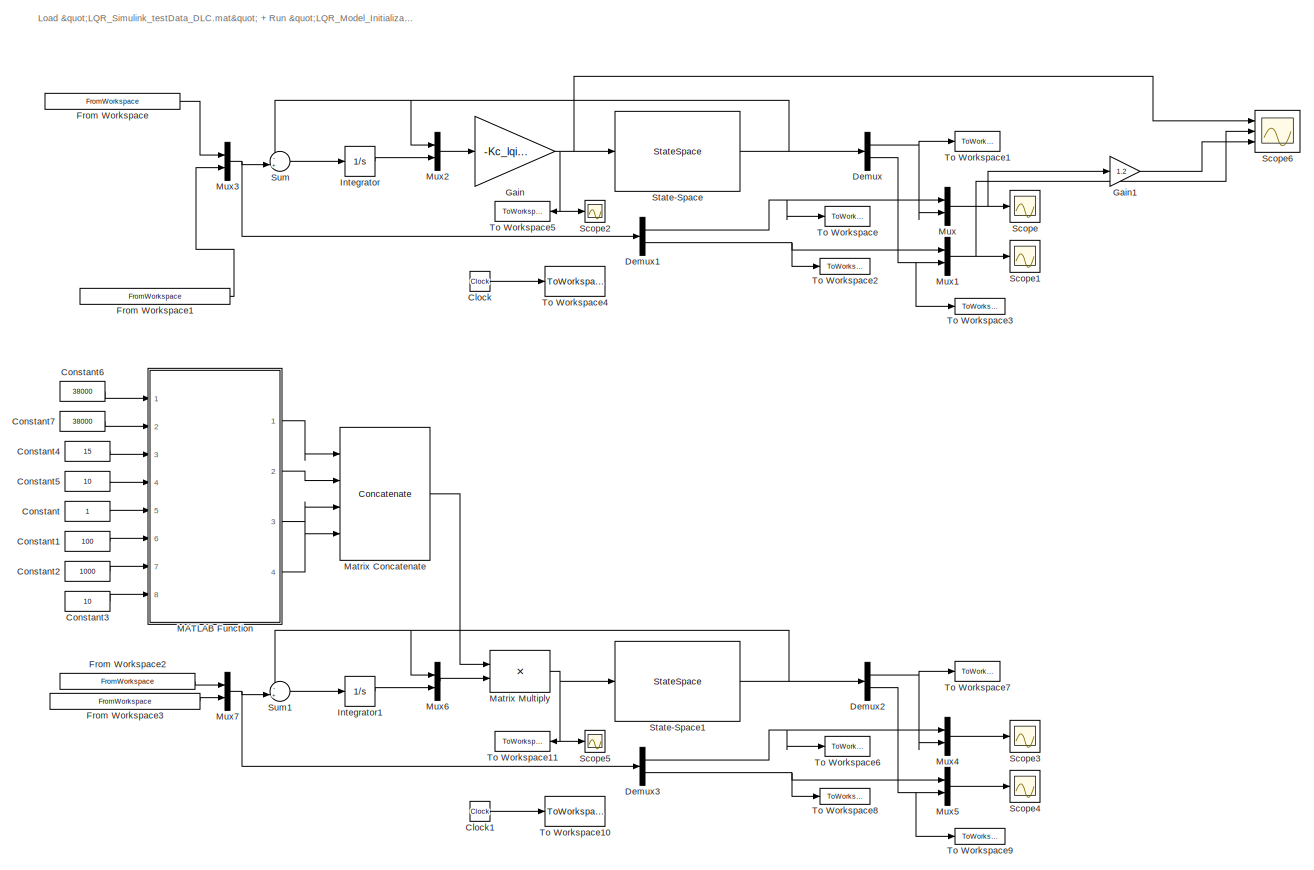
[diagram: root canvas - part 1/1, most of the canvas]
MODEL slx_00de79f0ce3c
KIND model
CONFIG AbsTol = auto
CONFIG EnableMultiTasking = off
CONFIG FixedStep = 0.025
CONFIG MaxStep = auto
CONFIG MinStep = auto
CONFIG RelTol = 1e-3
CONFIG SampleTimeConstraint = Unconstrained
CONFIG Solver = FixedStepAuto
CONFIG SolverName = FixedStepAuto
CONFIG StartTime = 0.0
CONFIG StopTime = Time(end)
BLOCK [Clock] Clock
BLOCK [Clock] Clock1
  Commented = on
BLOCK [Constant] Constant
  Commented = on
BLOCK [Constant] Constant1
  Commented = on
  Value = 100
BLOCK [Constant] Constant2
  Commented = on
  Value = 1000
BLOCK [Constant] Constant3
  Commented = on
  Value = 10
BLOCK [Constant] Constant4
  Commented = on
  Value = 15
BLOCK [Constant] Constant5
  Commented = on
  Value = 10
BLOCK [Constant] Constant6
  Commented = on
  Value = 38000
BLOCK [Constant] Constant7
  Commented = on
  Value = 38000
BLOCK [Demux] Demux
  DisplayOption = bar
  Outputs = 2
  Ports = [1, 2]
BLOCK [Demux] Demux1
  DisplayOption = bar
  Outputs = 2
  Ports = [1, 2]
BLOCK [Demux] Demux2
  Commented = on
  DisplayOption = bar
  Outputs = 2
  Ports = [1, 2]
BLOCK [Demux] Demux3
  Commented = on
  DisplayOption = bar
  Outputs = 2
  Ports = [1, 2]
BLOCK [FromWorkspace] From Workspace
  SampleTime = 0
  VariableName = [time, BetaRef_Filtered]
  ZeroCross = on
BLOCK [FromWorkspace] From Workspace1
  SampleTime = 0
  VariableName = [time, YawRateRef_Filtered]
  ZeroCross = on
BLOCK [FromWorkspace] From Workspace2
  Commented = on
  SampleTime = 0
  VariableName = [time, BetaRef_Filtered]
  ZeroCross = on
BLOCK [FromWorkspace] From Workspace3
  Commented = on
  SampleTime = 0
  VariableName = [time, YawRateRef_Filtered]
  ZeroCross = on
BLOCK [Gain] Gain
  Gain = -Kc_lqi_t1
  Multiplication = Matrix(K*u)
  OutDataTypeStr = Inherit: Inherit via internal rule
  ParamDataTypeStr = Inherit: Inherit via internal rule
  SaturateOnIntegerOverflow = off
BLOCK [Gain] Gain1
  Gain = 1.2
  OutDataTypeStr = Inherit: Inherit via internal rule
  ParamDataTypeStr = Inherit: Inherit via internal rule
  SaturateOnIntegerOverflow = off
BLOCK [Integrator] Integrator
  Ports = [1, 1]
BLOCK [Integrator] Integrator1
  Commented = on
  Ports = [1, 1]
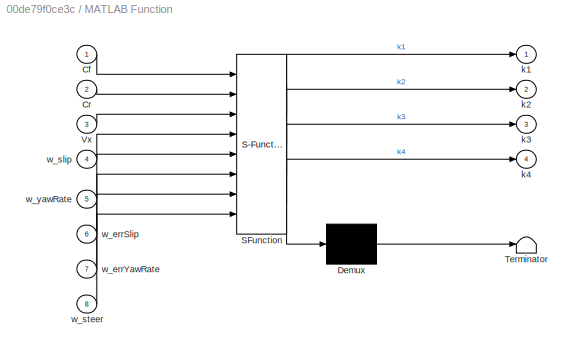
BLOCK [SubSystem] MATLAB Function
  Commented = on
  ErrorFcn = Stateflow.Translate.translate
  PermitHierarchicalResolution = ExplicitOnly
  Ports = [8, 4]
  RequestExecContextInheritance = off
  SFBlockType = MATLAB Function
  TreatAsAtomicUnit = on
BLOCK [Demux] MATLAB Function/ Demux 
  Outputs = 1
  Ports = [1, 1]
BLOCK [S-Function] MATLAB Function/ SFunction 
  EnableBusSupport = on
  FunctionName = sf_sfun
  PortCounts = [8 5]
  Ports = [8, 5]
  SFcnIsStateOwnerBlock = off
  SFunctionDeploymentMode = off
  Tag = Stateflow S-Function 2
BLOCK [Terminator] MATLAB Function/ Terminator 
BLOCK [Inport] MATLAB Function/Cf
  IconDisplay = Port number
BLOCK [Inport] MATLAB Function/Cr
  IconDisplay = Port number
  Port = 2
BLOCK [Inport] MATLAB Function/Vx
  IconDisplay = Port number
  Port = 3
BLOCK [Outport] MATLAB Function/k1
  IconDisplay = Port number
BLOCK [Outport] MATLAB Function/k2
  IconDisplay = Port number
  Port = 2
BLOCK [Outport] MATLAB Function/k3
  IconDisplay = Port number
  Port = 3
BLOCK [Outport] MATLAB Function/k4
  IconDisplay = Port number
  Port = 4
BLOCK [Inport] MATLAB Function/w_errSlip
  IconDisplay = Port number
  Port = 6
BLOCK [Inport] MATLAB Function/w_errYawRate
  IconDisplay = Port number
  Port = 7
BLOCK [Inport] MATLAB Function/w_slip
  IconDisplay = Port number
  Port = 4
BLOCK [Inport] MATLAB Function/w_steer
  IconDisplay = Port number
  Port = 8
BLOCK [Inport] MATLAB Function/w_yawRate
  IconDisplay = Port number
  Port = 5
BLOCK [Concatenate] Matrix Concatenate
  Commented = on
  ConcatenateDimension = 2
  NumInputs = 4
  Ports = [4, 1]
BLOCK [Product] Matrix Multiply
  Commented = on
  InputSameDT = off
  Multiplication = Matrix(*)
  OutDataTypeStr = Inherit: Inherit via internal rule
  Ports = [2, 1]
  RndMeth = Floor
  SaturateOnIntegerOverflow = off
BLOCK [Mux] Mux
  DisplayOption = bar
  Inputs = 2
  Ports = [2, 1]
BLOCK [Mux] Mux1
  DisplayOption = bar
  Inputs = 2
  Ports = [2, 1]
BLOCK [Mux] Mux2
  DisplayOption = bar
  Inputs = 2
  Ports = [2, 1]
BLOCK [Mux] Mux3
  DisplayOption = bar
  Inputs = 2
  Ports = [2, 1]
BLOCK [Mux] Mux4
  Commented = on
  DisplayOption = bar
  Inputs = 2
  Ports = [2, 1]
BLOCK [Mux] Mux5
  Commented = on
  DisplayOption = bar
  Inputs = 2
  Ports = [2, 1]
BLOCK [Mux] Mux6
  Commented = on
  DisplayOption = bar
  Inputs = 2
  Ports = [2, 1]
BLOCK [Mux] Mux7
  Commented = on
  DisplayOption = bar
  Inputs = 2
  Ports = [2, 1]
BLOCK [Scope] Scope
  Floating = off
  NumInputPorts = 1
  Ports = [1]
  ScopeSpecificationString = Simulink.scopes.TimeScopeBlockCfg('CurrentConfiguration', extmgr.ConfigurationSet(extmgr.Configuration('Core','General UI',true),extmgr.Configuration('Core','Source UI',true),extmgr.Configuration('Sources','WiredSimulink',true),extmgr.Configuration('Visuals','Time Domain',true,'SerializedDisplays',{struct('MinYLimReal','-0.01103','MaxYLimReal','0.01289','YLabelReal','','MinYLimMag','0.00000','MaxY...<+1338ch>
BLOCK [Scope] Scope1
  Floating = off
  NumInputPorts = 1
  Ports = [1]
  ScopeSpecificationString = Simulink.scopes.TimeScopeBlockCfg('CurrentConfiguration', extmgr.ConfigurationSet(extmgr.Configuration('Core','General UI',true),extmgr.Configuration('Core','Source UI',true),extmgr.Configuration('Sources','WiredSimulink',true,'DataLoggingVariableName','ScopeData1'),extmgr.Configuration('Visuals','Time Domain',true,'SerializedDisplays',{struct('MinYLimReal','-0.41391','MaxYLimReal','0.71999','YLab...<+1377ch>
BLOCK [Scope] Scope2
  Floating = off
  NumInputPorts = 1
  Ports = [1]
  ScopeSpecificationString = Simulink.scopes.TimeScopeBlockCfg('CurrentConfiguration', extmgr.ConfigurationSet(extmgr.Configuration('Core','General UI',true),extmgr.Configuration('Core','Source UI',true),extmgr.Configuration('Sources','WiredSimulink',true,'DataLoggingVariableName','ScopeData2'),extmgr.Configuration('Visuals','Time Domain',true,'SerializedDisplays',{struct('MinYLimReal','-0.15158','MaxYLimReal','0.27344','YLab...<+1363ch>
BLOCK [Scope] Scope3
  Commented = on
  Floating = off
  NumInputPorts = 1
  Ports = [1]
  ScopeSpecificationString = Simulink.scopes.TimeScopeBlockCfg('CurrentConfiguration', extmgr.ConfigurationSet(extmgr.Configuration('Core','General UI',true),extmgr.Configuration('Core','Source UI',true),extmgr.Configuration('Sources','WiredSimulink',true,'DataLoggingVariableName','ScopeData1'),extmgr.Configuration('Visuals','Time Domain',true,'SerializedDisplays',{struct('MinYLimReal','-0.06663','MaxYLimReal','0.08378','YLab...<+1377ch>
BLOCK [Scope] Scope4
  Commented = on
  Floating = off
  NumInputPorts = 1
  Ports = [1]
  ScopeSpecificationString = Simulink.scopes.TimeScopeBlockCfg('CurrentConfiguration', extmgr.ConfigurationSet(extmgr.Configuration('Core','General UI',true),extmgr.Configuration('Core','Source UI',true),extmgr.Configuration('Sources','WiredSimulink',true,'DataLoggingVariableName','ScopeData2'),extmgr.Configuration('Visuals','Time Domain',true,'SerializedDisplays',{struct('MinYLimReal','-0.24771','MaxYLimReal','0.31182','YLab...<+1377ch>
BLOCK [Scope] Scope5
  Commented = on
  Floating = off
  NumInputPorts = 1
  Ports = [1]
  ScopeSpecificationString = Simulink.scopes.TimeScopeBlockCfg('CurrentConfiguration', extmgr.ConfigurationSet(extmgr.Configuration('Core','General UI',true),extmgr.Configuration('Core','Source UI',true),extmgr.Configuration('Sources','WiredSimulink',true,'DataLoggingVariableName','ScopeData3'),extmgr.Configuration('Visuals','Time Domain',true,'SerializedDisplays',{struct('MinYLimReal','-0.09336','MaxYLimReal','0.11765','YLab...<+1363ch>
BLOCK [Scope] Scope6
  Floating = off
  NumInputPorts = 3
  Ports = [3]
  ScopeSpecificationString = Simulink.scopes.TimeScopeBlockCfg('CurrentConfiguration', extmgr.ConfigurationSet(extmgr.Configuration('Core','General UI',true),extmgr.Configuration('Core','Source UI',true),extmgr.Configuration('Sources','WiredSimulink',true,'DataLoggingVariableName','ScopeData1'),extmgr.Configuration('Visuals','Time Domain',true,'SerializedDisplays',{struct('MinYLimReal','-0.08734','MaxYLimReal','0.07308','YLab...<+2710ch>
BLOCK [StateSpace] State-Space
  A = A
  B = B
  C = eye(2,2)
  D = [0;0]
  InitialCondition = 0
  Ports = [1, 1]
BLOCK [StateSpace] State-Space1
  A = A
  B = B
  C = eye(2,2)
  Commented = on
  D = [0;0]
  InitialCondition = 0
  Ports = [1, 1]
BLOCK [Sum] Sum
  IconShape = round
  InputSameDT = off
  Inputs = -+|
  OutDataTypeStr = Inherit: Inherit via internal rule
  Ports = [2, 1]
  SaturateOnIntegerOverflow = off
BLOCK [Sum] Sum1
  Commented = on
  IconShape = round
  InputSameDT = off
  Inputs = -+|
  OutDataTypeStr = Inherit: Inherit via internal rule
  Ports = [2, 1]
  SaturateOnIntegerOverflow = off
BLOCK [ToWorkspace] To Workspace
  FixptAsFi = on
  MaxDataPoints = inf
  Ports = [1]
  SampleTime = -1
  VariableName = slipRef
BLOCK [ToWorkspace] To Workspace1
  FixptAsFi = on
  MaxDataPoints = inf
  Ports = [1]
  SampleTime = -1
  VariableName = slipOut
BLOCK [ToWorkspace] To Workspace10
  Commented = on
  FixptAsFi = on
  MaxDataPoints = inf
  Ports = [1]
  SampleTime = -1
  VariableName = simTime1
BLOCK [ToWorkspace] To Workspace11
  Commented = on
  FixptAsFi = on
  MaxDataPoints = inf
  Ports = [1]
  SampleTime = -1
  VariableName = ControlEffort1
BLOCK [ToWorkspace] To Workspace2
  FixptAsFi = on
  MaxDataPoints = inf
  Ports = [1]
  SampleTime = -1
  VariableName = yawRef
BLOCK [ToWorkspace] To Workspace3
  FixptAsFi = on
  MaxDataPoints = inf
  Ports = [1]
  SampleTime = -1
  VariableName = yawOut
BLOCK [ToWorkspace] To Workspace4
  FixptAsFi = on
  MaxDataPoints = inf
  Ports = [1]
  SampleTime = -1
  VariableName = simTime
BLOCK [ToWorkspace] To Workspace5
  FixptAsFi = on
  MaxDataPoints = inf
  Ports = [1]
  SampleTime = -1
  VariableName = ControlEffort
BLOCK [ToWorkspace] To Workspace6
  Commented = on
  FixptAsFi = on
  MaxDataPoints = inf
  Ports = [1]
  SampleTime = -1
  VariableName = slipRef1
BLOCK [ToWorkspace] To Workspace7
  Commented = on
  FixptAsFi = on
  MaxDataPoints = inf
  Ports = [1]
  SampleTime = -1
  VariableName = slipOut1
BLOCK [ToWorkspace] To Workspace8
  Commented = on
  FixptAsFi = on
  MaxDataPoints = inf
  Ports = [1]
  SampleTime = -1
  VariableName = yawRef1
BLOCK [ToWorkspace] To Workspace9
  Commented = on
  FixptAsFi = on
  MaxDataPoints = inf
  Ports = [1]
  SampleTime = -1
  VariableName = yawOut1
ANNOTATION (root): Load "LQR_Simulink_testData_DLC.mat" + Run "LQR_Model_Initialization.m".
LINE Clock1:1 -> To Workspace10:1
LINE Clock:1 -> To Workspace4:1
LINE Constant1:1 -> MATLAB Function:6
LINE Constant2:1 -> MATLAB Function:7
LINE Constant3:1 -> MATLAB Function:8
LINE Constant4:1 -> MATLAB Function:3
LINE Constant5:1 -> MATLAB Function:4
LINE Constant6:1 -> MATLAB Function:1
LINE Constant7:1 -> MATLAB Function:2
LINE Constant:1 -> MATLAB Function:5
NET Demux1:1 -> Mux:1, To Workspace:1
NET Demux1:2 -> Mux1:1, To Workspace2:1
NET Demux2:1 -> Mux4:2, To Workspace7:1
NET Demux2:2 -> Mux5:2, To Workspace9:1
NET Demux3:1 -> Mux4:1, To Workspace6:1
NET Demux3:2 -> Mux5:1, To Workspace8:1
NET Demux:1 -> Mux:2, To Workspace1:1
NET Demux:2 -> Mux1:2, To Workspace3:1
LINE From Workspace1:1 -> Mux3:2
LINE From Workspace2:1 -> Mux7:1
LINE From Workspace3:1 -> Mux7:2
LINE From Workspace:1 -> Mux3:1
LINE Gain1:1 -> Scope6:3
NET Gain:1 -> Scope2:1, Scope6:1, State-Space:1, To Workspace5:1
LINE Integrator1:1 -> Mux6:2
LINE Integrator:1 -> Mux2:2
LINE MATLAB Function:1 -> Matrix Concatenate:1
LINE MATLAB Function:2 -> Matrix Concatenate:2
LINE MATLAB Function:3 -> Matrix Concatenate:3
LINE MATLAB Function:4 -> Matrix Concatenate:4
LINE Matrix Concatenate:1 -> Matrix Multiply:1
NET Matrix Multiply:1 -> Scope5:1, State-Space1:1, To Workspace11:1
NET Mux1:1 -> Scope1:1, Scope6:2
LINE Mux2:1 -> Gain:1
NET Mux3:1 -> Demux1:1, Sum:2
LINE Mux4:1 -> Scope3:1
LINE Mux5:1 -> Scope4:1
LINE Mux6:1 -> Matrix Multiply:2
NET Mux7:1 -> Demux3:1, Sum1:2
NET Mux:1 -> Gain1:1, Scope:1
NET State-Space1:1 -> Demux2:1, Mux6:1, Sum1:1
NET State-Space:1 -> Demux:1, Mux2:1, Sum:1
LINE Sum1:1 -> Integrator1:1
LINE Sum:1 -> Integrator:1
note: NET lines group one-source signal fan-out (src -> all destinations, sorted); 1:1 wires keep LINE
CHART MATLAB Function states=1 transitions=1
  STATE_LABEL 'eML_blk_kernel()'
  STATE_LABEL "SCRIPT:\nfunction [k1,k2,k3,k4] = LQR(Cf, Cr, Vx, w_slip, w_yawRate, w_errSlip, w_errYawRate, w_steer)\ncoder.extrinsic('ss','lqi')\n\n% Vehicle Configuration parameters\nlf=\t1.6;\nlr=\t1.4;\nm=1575;\nIz=\t2875;\n\n% Code for System Modelling(Continous Time)\n\nA=[-(Cf+Cr)/(m*Vx), -1-(lf*Cf-lr*Cr)/(m*Vx^2);\n    -(lf*Cf-lr*Cr)/Iz, -(lf^2*Cf+lr^2*Cr)/(Iz*Vx)];\nB=[Cf/(m*Vx);(lf*Cf)/Iz];\nC=eye(2);\nD=[0];\n\n% Weights...<+227ch>"
